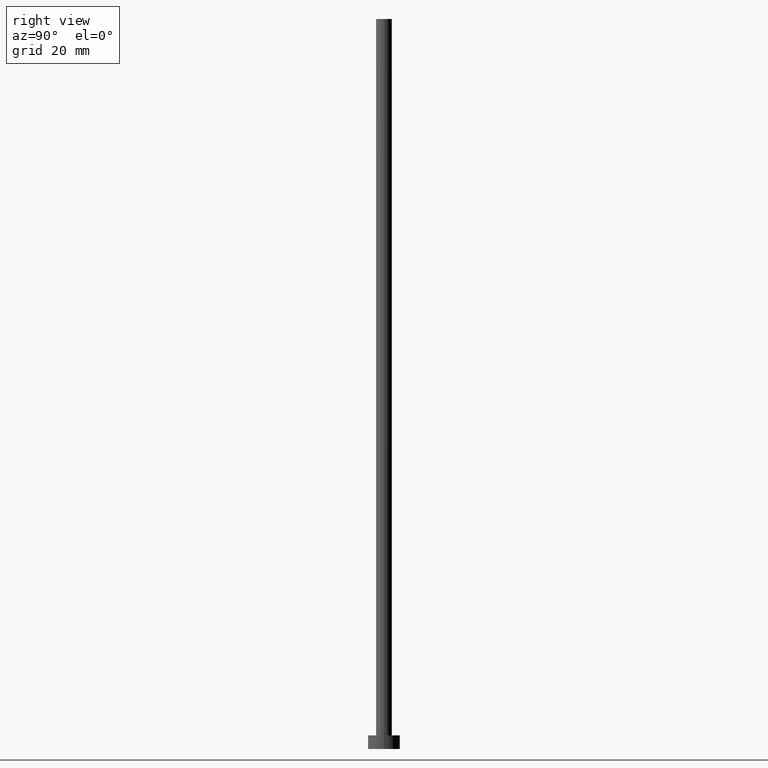
[diagram: clean part render]
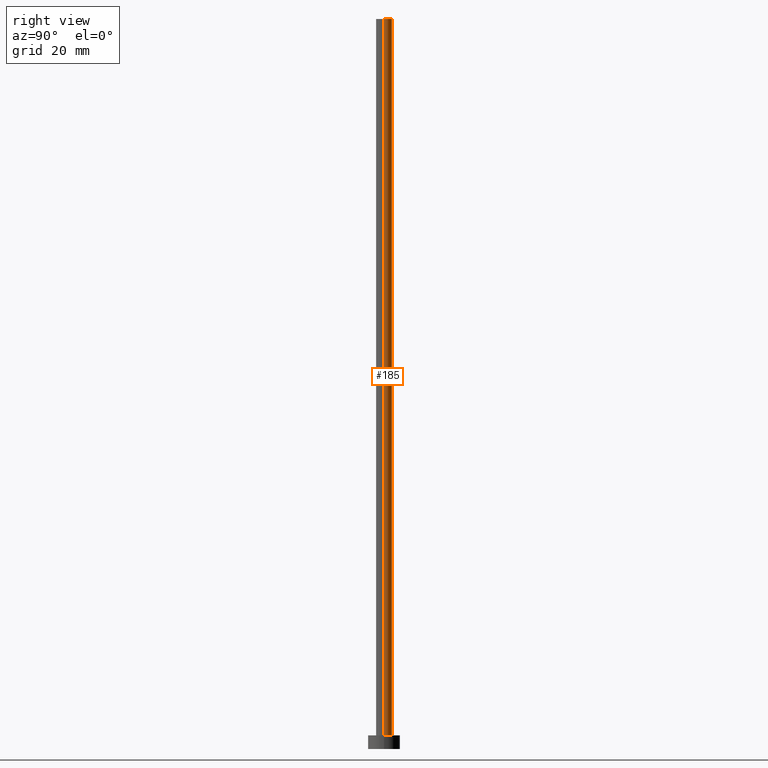
[diagram: same view with one face highlighted and labeled with its STEP entity id]
A machine part, right view. The second image highlights one B-rep face of the part: STEP entity #185.
In plain terms, the highlighted cylindrical surface (edge-blend (fillet) strip) has radius 1.75 mm, axis along (-0, -0, -1).
Its self-contained STEP definition (entity closure, byte-faithful):
#7 = CARTESIAN_POINT ( 'NONE',  ( 1.750000000000000000, 2.143131898507868297E-16, 3.000000000000000000 ) ) ;
#20 = VECTOR ( 'NONE', #231, 1000.000000000000000 ) ;
#24 = VERTEX_POINT ( 'NONE', #91 ) ;
#32 = CARTESIAN_POINT ( 'NONE',  ( 0.000000000000000000, 0.000000000000000000, 3.000000000000000000 ) ) ;
#37 = DIRECTION ( 'NONE',  ( 0.000000000000000000, 0.000000000000000000, 1.000000000000000000 ) ) ;
#39 = CIRCLE ( 'NONE', #222, 1.750000000000000000 ) ;
#47 = VERTEX_POINT ( 'NONE', #62 ) ;
#48 = CARTESIAN_POINT ( 'NONE',  ( 1.750000000000000000, 2.143131898507868297E-16, 160.0000000000000000 ) ) ;
#53 = DIRECTION ( 'NONE',  ( -1.000000000000000000, 0.000000000000000000, 0.000000000000000000 ) ) ;
#54 = EDGE_CURVE ( 'NONE', #233, #64, #155, .T. ) ;
#57 = EDGE_CURVE ( 'NONE', #64, #47, #39, .T. ) ;
#62 = CARTESIAN_POINT ( 'NONE',  ( -1.750000000000000000, 0.000000000000000000, 3.000000000000000000 ) ) ;
#64 = VERTEX_POINT ( 'NONE', #7 ) ;
#65 = DIRECTION ( 'NONE',  ( -0.000000000000000000, -0.000000000000000000, -1.000000000000000000 ) ) ;
#82 = EDGE_CURVE ( 'NONE', #24, #47, #171, .T. ) ;
#86 = ORIENTED_EDGE ( 'NONE', *, *, #165, .F. ) ;
#87 = AXIS2_PLACEMENT_3D ( 'NONE', #251, #234, #53 ) ;
#91 = CARTESIAN_POINT ( 'NONE',  ( -1.750000000000000000, 0.000000000000000000, 160.0000000000000000 ) ) ;
#93 = ORIENTED_EDGE ( 'NONE', *, *, #54, .T. ) ;
#102 = CARTESIAN_POINT ( 'NONE',  ( -1.750000000000000000, 0.000000000000000000, 160.0000000000000000 ) ) ;
#116 = CIRCLE ( 'NONE', #166, 1.750000000000000000 ) ;
#120 = DIRECTION ( 'NONE',  ( 1.000000000000000000, 0.000000000000000000, 0.000000000000000000 ) ) ;
#154 = DIRECTION ( 'NONE',  ( 1.000000000000000000, 0.000000000000000000, 0.000000000000000000 ) ) ;
#155 = LINE ( 'NONE', #48, #244 ) ;
#157 = CYLINDRICAL_SURFACE ( 'NONE', #87, 1.750000000000000000 ) ;
#165 = EDGE_CURVE ( 'NONE', #233, #24, #116, .T. ) ;
#166 = AXIS2_PLACEMENT_3D ( 'NONE', #239, #37, #120 ) ;
#171 = LINE ( 'NONE', #102, #20 ) ;
#178 = FACE_OUTER_BOUND ( 'NONE', #194, .T. ) ;
#185 = ADVANCED_FACE ( 'NONE', ( #178 ), #157, .T. ) ;
#194 = EDGE_LOOP ( 'NONE', ( #86, #93, #248, #255 ) ) ;
#214 = DIRECTION ( 'NONE',  ( 0.000000000000000000, 0.000000000000000000, 1.000000000000000000 ) ) ;
#222 = AXIS2_PLACEMENT_3D ( 'NONE', #32, #214, #154 ) ;
#225 = CARTESIAN_POINT ( 'NONE',  ( 1.750000000000000000, 2.143131898507868297E-16, 160.0000000000000000 ) ) ;
#231 = DIRECTION ( 'NONE',  ( -0.000000000000000000, -0.000000000000000000, -1.000000000000000000 ) ) ;
#233 = VERTEX_POINT ( 'NONE', #225 ) ;
#234 = DIRECTION ( 'NONE',  ( -0.000000000000000000, -0.000000000000000000, -1.000000000000000000 ) ) ;
#239 = CARTESIAN_POINT ( 'NONE',  ( 0.000000000000000000, 0.000000000000000000, 160.0000000000000000 ) ) ;
#244 = VECTOR ( 'NONE', #65, 1000.000000000000000 ) ;
#248 = ORIENTED_EDGE ( 'NONE', *, *, #57, .T. ) ;
#251 = CARTESIAN_POINT ( 'NONE',  ( 0.000000000000000000, 0.000000000000000000, 160.0000000000000000 ) ) ;
#255 = ORIENTED_EDGE ( 'NONE', *, *, #82, .F. ) ;